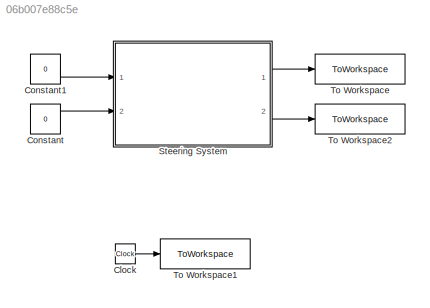
MODEL slx_06b007e88c5e
KIND model
CONFIG AbsTol = auto
CONFIG EnableMultiTasking = off
CONFIG FixedStep = auto
CONFIG MaxStep = max_time_step
CONFIG MinStep = auto
CONFIG RelTol = 1e-3
CONFIG SampleTimeConstraint = Unconstrained
CONFIG Solver = VariableStepAuto
CONFIG SolverName = VariableStepAuto
CONFIG StartTime = 0.0
CONFIG StopTime = Tsim
BLOCK [Clock] Clock
BLOCK [Constant] Constant
  Value = 0
BLOCK [Constant] Constant1
  Value = 0
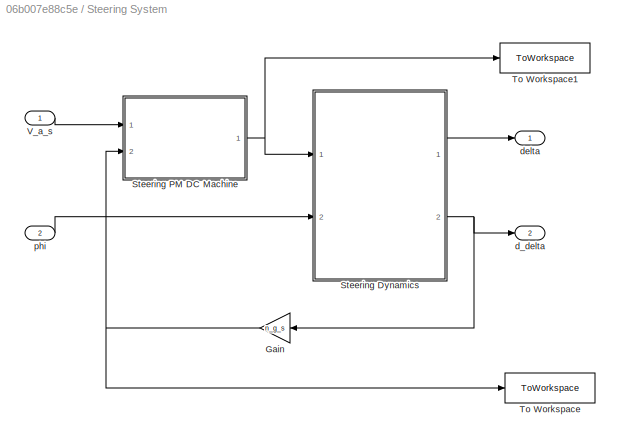
BLOCK [SubSystem] Steering System
  Ports = [2, 2]
  RequestExecContextInheritance = off
BLOCK [Gain] Steering System/Gain
  AttributesFormatString = %<Gain>
  Gain = n_g_s
  OutDataTypeStr = Inherit: Inherit via internal rule
  ParamDataTypeStr = Inherit: Inherit via internal rule
  SaturateOnIntegerOverflow = off
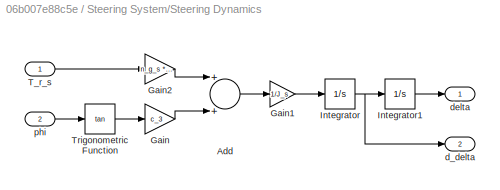
BLOCK [SubSystem] Steering System/Steering Dynamics
  Ports = [2, 2]
  RequestExecContextInheritance = off
BLOCK [Sum] Steering System/Steering Dynamics/Add
  InputSameDT = off
  OutDataTypeStr = Inherit: Inherit via internal rule
  Ports = [2, 1]
  SaturateOnIntegerOverflow = off
BLOCK [Gain] Steering System/Steering Dynamics/Gain
  Gain = c_3
  OutDataTypeStr = Inherit: Inherit via internal rule
  ParamDataTypeStr = Inherit: Inherit via internal rule
  SaturateOnIntegerOverflow = off
BLOCK [Gain] Steering System/Steering Dynamics/Gain1
  AttributesFormatString = %<Gain>
  Gain = 1/J_s
  OutDataTypeStr = Inherit: Inherit via internal rule
  ParamDataTypeStr = Inherit: Inherit via internal rule
  SaturateOnIntegerOverflow = off
BLOCK [Gain] Steering System/Steering Dynamics/Gain2
  AttributesFormatString = %<Gain>
  Gain = n_g_s * eta_g_s
  OutDataTypeStr = Inherit: Inherit via internal rule
  ParamDataTypeStr = Inherit: Inherit via internal rule
  SaturateOnIntegerOverflow = off
BLOCK [Integrator] Steering System/Steering Dynamics/Integrator
  Ports = [1, 1]
BLOCK [Integrator] Steering System/Steering Dynamics/Integrator1
  Ports = [1, 1]
BLOCK [Inport] Steering System/Steering Dynamics/T_r_s
  IconDisplay = Port number
BLOCK [Trigonometry] Steering System/Steering Dynamics/Trigonometric Function
  Operator = tan
  Ports = [1, 1]
BLOCK [Outport] Steering System/Steering Dynamics/d_delta
  IconDisplay = Port number
  Port = 2
  VectorParamsAs1DForOutWhenUnconnected = off
BLOCK [Outport] Steering System/Steering Dynamics/delta
  IconDisplay = Port number
  VectorParamsAs1DForOutWhenUnconnected = off
BLOCK [Inport] Steering System/Steering Dynamics/phi
  IconDisplay = Port number
  Port = 2
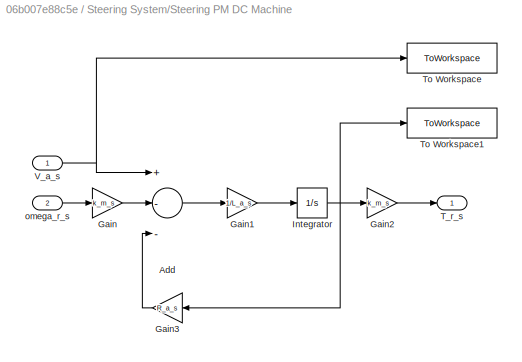
BLOCK [SubSystem] Steering System/Steering PM DC Machine
  Ports = [2, 1]
  RequestExecContextInheritance = off
BLOCK [Sum] Steering System/Steering PM DC Machine/Add
  InputSameDT = off
  Inputs = +--
  OutDataTypeStr = Inherit: Inherit via internal rule
  Ports = [3, 1]
  SaturateOnIntegerOverflow = off
BLOCK [Gain] Steering System/Steering PM DC Machine/Gain
  AttributesFormatString = %<Gain>
  Gain = k_m_s
  OutDataTypeStr = Inherit: Inherit via internal rule
  ParamDataTypeStr = Inherit: Inherit via internal rule
  SaturateOnIntegerOverflow = off
BLOCK [Gain] Steering System/Steering PM DC Machine/Gain1
  AttributesFormatString = %<Gain>
  Gain = 1/L_a_s
  OutDataTypeStr = Inherit: Inherit via internal rule
  ParamDataTypeStr = Inherit: Inherit via internal rule
  SaturateOnIntegerOverflow = off
BLOCK [Gain] Steering System/Steering PM DC Machine/Gain2
  AttributesFormatString = %<Gain>
  Gain = k_m_s
  OutDataTypeStr = Inherit: Inherit via internal rule
  ParamDataTypeStr = Inherit: Inherit via internal rule
  SaturateOnIntegerOverflow = off
BLOCK [Gain] Steering System/Steering PM DC Machine/Gain3
  AttributesFormatString = %<Gain>
  Gain = R_a_s
  OutDataTypeStr = Inherit: Inherit via internal rule
  ParamDataTypeStr = Inherit: Inherit via internal rule
  SaturateOnIntegerOverflow = off
BLOCK [Integrator] Steering System/Steering PM DC Machine/Integrator
  Ports = [1, 1]
BLOCK [Outport] Steering System/Steering PM DC Machine/T_r_s
  IconDisplay = Port number
  VectorParamsAs1DForOutWhenUnconnected = off
BLOCK [ToWorkspace] Steering System/Steering PM DC Machine/To Workspace
  FixptAsFi = on
  MaxDataPoints = inf
  Ports = [1]
  SampleTime = -1
  VariableName = V_a_s
BLOCK [ToWorkspace] Steering System/Steering PM DC Machine/To Workspace1
  FixptAsFi = on
  MaxDataPoints = inf
  Ports = [1]
  SampleTime = -1
  VariableName = i_a_s
BLOCK [Inport] Steering System/Steering PM DC Machine/V_a_s
  IconDisplay = Port number
BLOCK [Inport] Steering System/Steering PM DC Machine/omega_r_s
  IconDisplay = Port number
  Port = 2
BLOCK [ToWorkspace] Steering System/To Workspace
  FixptAsFi = on
  MaxDataPoints = inf
  Ports = [1]
  SampleTime = -1
  VariableName = omega_r_s
BLOCK [ToWorkspace] Steering System/To Workspace1
  FixptAsFi = on
  MaxDataPoints = inf
  Ports = [1]
  SampleTime = -1
  VariableName = T_r_s
BLOCK [Inport] Steering System/V_a_s
  IconDisplay = Port number
BLOCK [Outport] Steering System/d_delta
  IconDisplay = Port number
  Port = 2
  VectorParamsAs1DForOutWhenUnconnected = off
BLOCK [Outport] Steering System/delta
  IconDisplay = Port number
  VectorParamsAs1DForOutWhenUnconnected = off
BLOCK [Inport] Steering System/phi
  IconDisplay = Port number
  Port = 2
BLOCK [ToWorkspace] To Workspace
  FixptAsFi = on
  MaxDataPoints = inf
  Ports = [1]
  SampleTime = -1
  VariableName = sine_out
BLOCK [ToWorkspace] To Workspace1
  FixptAsFi = on
  MaxDataPoints = inf
  Ports = [1]
  SampleTime = -1
  VariableName = t
BLOCK [ToWorkspace] To Workspace2
  FixptAsFi = on
  MaxDataPoints = inf
  Ports = [1]
  SampleTime = -1
  VariableName = d_sine_out
LINE Clock:1 -> To Workspace1:1
LINE Constant1:1 -> Steering System:1
LINE Constant:1 -> Steering System:2
NET Steering System/Gain:1 -> Steering System/Steering PM DC Machine:2, Steering System/To Workspace:1
LINE Steering System/Steering Dynamics/Add:1 -> Steering System/Steering Dynamics/Gain1:1
LINE Steering System/Steering Dynamics/Gain1:1 -> Steering System/Steering Dynamics/Integrator:1
LINE Steering System/Steering Dynamics/Gain2:1 -> Steering System/Steering Dynamics/Add:1
LINE Steering System/Steering Dynamics/Gain:1 -> Steering System/Steering Dynamics/Add:2
LINE Steering System/Steering Dynamics/Integrator1:1 -> Steering System/Steering Dynamics/delta:1
NET Steering System/Steering Dynamics/Integrator:1 -> Steering System/Steering Dynamics/Integrator1:1, Steering System/Steering Dynamics/d_delta:1
LINE Steering System/Steering Dynamics/T_r_s:1 -> Steering System/Steering Dynamics/Gain2:1
LINE Steering System/Steering Dynamics/Trigonometric Function:1 -> Steering System/Steering Dynamics/Gain:1
LINE Steering System/Steering Dynamics/phi:1 -> Steering System/Steering Dynamics/Trigonometric Function:1
LINE Steering System/Steering Dynamics:1 -> Steering System/delta:1
NET Steering System/Steering Dynamics:2 -> Steering System/Gain:1, Steering System/d_delta:1
LINE Steering System/Steering PM DC Machine/Add:1 -> Steering System/Steering PM DC Machine/Gain1:1
LINE Steering System/Steering PM DC Machine/Gain1:1 -> Steering System/Steering PM DC Machine/Integrator:1
LINE Steering System/Steering PM DC Machine/Gain2:1 -> Steering System/Steering PM DC Machine/T_r_s:1
LINE Steering System/Steering PM DC Machine/Gain3:1 -> Steering System/Steering PM DC Machine/Add:3
LINE Steering System/Steering PM DC Machine/Gain:1 -> Steering System/Steering PM DC Machine/Add:2
NET Steering System/Steering PM DC Machine/Integrator:1 -> Steering System/Steering PM DC Machine/Gain2:1, Steering System/Steering PM DC Machine/Gain3:1, Steering System/Steering PM DC Machine/To Workspace1:1
NET Steering System/Steering PM DC Machine/V_a_s:1 -> Steering System/Steering PM DC Machine/Add:1, Steering System/Steering PM DC Machine/To Workspace:1
LINE Steering System/Steering PM DC Machine/omega_r_s:1 -> Steering System/Steering PM DC Machine/Gain:1
NET Steering System/Steering PM DC Machine:1 -> Steering System/Steering Dynamics:1, Steering System/To Workspace1:1
LINE Steering System/V_a_s:1 -> Steering System/Steering PM DC Machine:1
LINE Steering System/phi:1 -> Steering System/Steering Dynamics:2
LINE Steering System:1 -> To Workspace:1
LINE Steering System:2 -> To Workspace2:1
note: NET lines group one-source signal fan-out (src -> all destinations, sorted); 1:1 wires keep LINE
